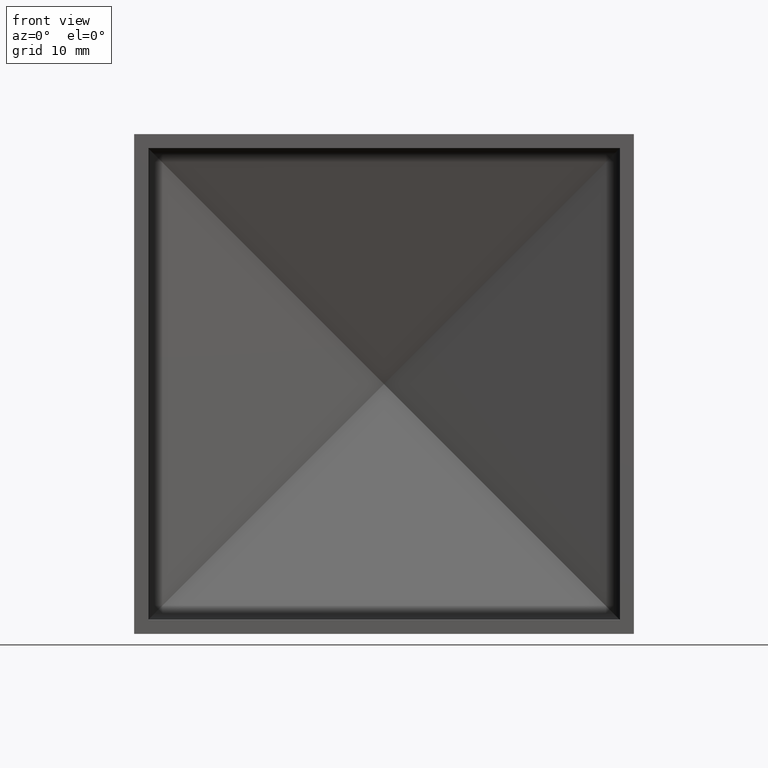
[diagram: clean part render]
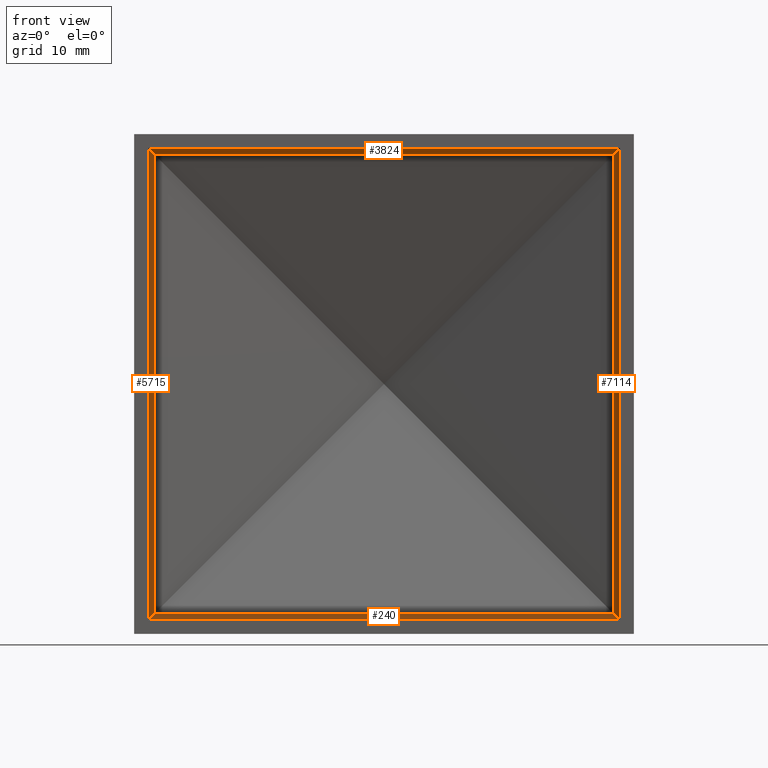
[diagram: same view with one multi-face feature highlighted, each face labeled with its STEP entity id]
A machine part, front view. The highlighted faces form ONE feature: a constant-radius fillet chain: 4 tangent blend faces with common blend radius 1 mm. The faces share edges in the B-rep.
Their STEP definitions:
[1] entity #240 (Cylinder):
#32 = EDGE_CURVE ( 'NONE', #11591, #4224, #11030, .T. ) ;
#240 = ADVANCED_FACE ( 'NONE', ( #425 ), #7842, .F. ) ;
#425 = FACE_OUTER_BOUND ( 'NONE', #6686, .T. ) ;
#426 = EDGE_CURVE ( 'NONE', #10903, #11591, #1463, .T. ) ;
#585 = DIRECTION ( 'NONE',  ( 1.000000000000000000, 0.000000000000000000, -0.000000000000000000 ) ) ;
#686 = CARTESIAN_POINT ( 'NONE',  ( 24.75550417178340723, 9.055369945534444298, -24.75550417178340723 ) ) ;
#1028 = AXIS2_PLACEMENT_3D ( 'NONE', #10097, #3553, #4428 ) ;
#1203 = VECTOR ( 'NONE', #5384, 1000.000000000000000 ) ;
#1463 =( BOUNDED_CURVE ( )  B_SPLINE_CURVE ( 3, ( #6646, #10402, #8469, #2819 ),
 .UNSPECIFIED., .F., .T. ) 
 B_SPLINE_CURVE_WITH_KNOTS ( ( 4, 4 ),
 ( 3.141592653589791340, 4.351324550702121208 ),
 .UNSPECIFIED. ) 
 CURVE ( )  GEOMETRIC_REPRESENTATION_ITEM ( )  RATIONAL_B_SPLINE_CURVE ( ( 1.000000000000000000, 0.8817188890797186263, 0.8817188890797186263, 1.000000000000000000 ) ) 
 REPRESENTATION_ITEM ( '' )  );
#1532 = CARTESIAN_POINT ( 'NONE',  ( 24.99999999999999289, 8.271739631613602484, -25.00000000000000000 ) ) ;
#2070 = CARTESIAN_POINT ( 'NONE',  ( -24.99999999999999289, 8.271739631613600707, -24.99999999999998579 ) ) ;
#2383 = LINE ( 'NONE', #11677, #11069 ) ;
#2404 = EDGE_CURVE ( 'NONE', #4224, #7138, #11124, .T. ) ;
#2819 = CARTESIAN_POINT ( 'NONE',  ( -24.35327022988071732, 9.207260954021604604, -24.35327022988070667 ) ) ;
#3150 = CARTESIAN_POINT ( 'NONE',  ( -24.35327022988071732, 9.207260954021604604, -24.35327022988070667 ) ) ;
#3488 = CARTESIAN_POINT ( 'NONE',  ( 24.35327022988072798, 9.207260954021602828, -24.35327022988073153 ) ) ;
#3544 = CARTESIAN_POINT ( 'NONE',  ( -26.50000000000002487, 9.207260954021604604, -24.35327022988070667 ) ) ;
#3553 = DIRECTION ( 'NONE',  ( 1.000000000000000000, -0.000000000000000000, -4.440892098500625669E-16 ) ) ;
#3832 = ORIENTED_EDGE ( 'NONE', *, *, #6747, .T. ) ;
#4224 = VERTEX_POINT ( 'NONE', #5218 ) ;
#4428 = DIRECTION ( 'NONE',  ( 0.000000000000000000, 0.000000000000000000, -1.000000000000000000 ) ) ;
#5055 = ORIENTED_EDGE ( 'NONE', *, *, #32, .F. ) ;
#5218 = CARTESIAN_POINT ( 'NONE',  ( 24.35327022988072798, 9.207260954021602828, -24.35327022988073153 ) ) ;
#5384 = DIRECTION ( 'NONE',  ( 1.000000000000000000, -0.000000000000000000, -4.440892098500625669E-16 ) ) ;
#6646 = CARTESIAN_POINT ( 'NONE',  ( -24.99999999999999289, 8.271739631613600707, -24.99999999999998579 ) ) ;
#6686 = EDGE_LOOP ( 'NONE', ( #7185, #3832, #10701, #5055 ) ) ;
#6747 = EDGE_CURVE ( 'NONE', #10903, #7138, #2383, .T. ) ;
#7138 = VERTEX_POINT ( 'NONE', #7287 ) ;
#7185 = ORIENTED_EDGE ( 'NONE', *, *, #426, .F. ) ;
#7287 = CARTESIAN_POINT ( 'NONE',  ( 24.99999999999999289, 8.271739631613602484, -25.00000000000000000 ) ) ;
#7842 = CYLINDRICAL_SURFACE ( 'NONE', #1028, 1.000000000000000888 ) ;
#8469 = CARTESIAN_POINT ( 'NONE',  ( -24.75550417178340368, 9.055369945534446074, -24.75550417178338947 ) ) ;
#10097 = CARTESIAN_POINT ( 'NONE',  ( -26.50000000000002487, 8.271739631613602484, -23.99999999999998224 ) ) ;
#10402 = CARTESIAN_POINT ( 'NONE',  ( -24.99999999999999289, 8.701696632344857463, -24.99999999999998224 ) ) ;
#10701 = ORIENTED_EDGE ( 'NONE', *, *, #2404, .F. ) ;
#10903 = VERTEX_POINT ( 'NONE', #2070 ) ;
#11030 = LINE ( 'NONE', #3544, #1203 ) ;
#11033 = CARTESIAN_POINT ( 'NONE',  ( 24.99999999999999289, 8.701696632344857463, -25.00000000000000000 ) ) ;
#11069 = VECTOR ( 'NONE', #585, 1000.000000000000000 ) ;
#11124 =( BOUNDED_CURVE ( )  B_SPLINE_CURVE ( 3, ( #3488, #686, #11033, #1532 ),
 .UNSPECIFIED., .F., .F. ) 
 B_SPLINE_CURVE_WITH_KNOTS ( ( 4, 4 ),
 ( 1.931860756477469021, 3.141592653589793116 ),
 .UNSPECIFIED. ) 
 CURVE ( )  GEOMETRIC_REPRESENTATION_ITEM ( )  RATIONAL_B_SPLINE_CURVE ( ( 1.000000000000000000, 0.8817188890797196255, 0.8817188890797196255, 1.000000000000000000 ) ) 
 REPRESENTATION_ITEM ( '' )  );
#11591 = VERTEX_POINT ( 'NONE', #3150 ) ;
#11677 = CARTESIAN_POINT ( 'NONE',  ( -26.50000000000000000, 8.271739631613602484, -24.99999999999999289 ) ) ;
[2] entity #7114 (Cylinder):
#222 = VECTOR ( 'NONE', #6577, 1000.000000000000000 ) ;
#686 = CARTESIAN_POINT ( 'NONE',  ( 24.75550417178340723, 9.055369945534444298, -24.75550417178340723 ) ) ;
#998 = CARTESIAN_POINT ( 'NONE',  ( 24.35327022988074219, 9.207260954021601052, 24.35327022988073509 ) ) ;
#1532 = CARTESIAN_POINT ( 'NONE',  ( 24.99999999999999289, 8.271739631613602484, -25.00000000000000000 ) ) ;
#1787 = CYLINDRICAL_SURFACE ( 'NONE', #2998, 0.9999999999999974465 ) ;
#1999 = VECTOR ( 'NONE', #4627, 1000.000000000000000 ) ;
#2075 = CARTESIAN_POINT ( 'NONE',  ( 24.75550417178341434, 9.055369945534437193, 24.75550417178342144 ) ) ;
#2404 = EDGE_CURVE ( 'NONE', #4224, #7138, #11124, .T. ) ;
#2514 = CARTESIAN_POINT ( 'NONE',  ( 25.00000000000000000, 8.271739631613600707, 25.00000000000000000 ) ) ;
#2977 =( BOUNDED_CURVE ( )  B_SPLINE_CURVE ( 3, ( #10596, #6670, #2075, #998 ),
 .UNSPECIFIED., .F., .T. ) 
 B_SPLINE_CURVE_WITH_KNOTS ( ( 4, 4 ),
 ( -1.776356839400250465E-15, 1.209731897112316990 ),
 .UNSPECIFIED. ) 
 CURVE ( )  GEOMETRIC_REPRESENTATION_ITEM ( )  RATIONAL_B_SPLINE_CURVE ( ( 1.000000000000000000, 0.8817188890797207357, 0.8817188890797207357, 1.000000000000000000 ) ) 
 REPRESENTATION_ITEM ( '' )  );
#2998 = AXIS2_PLACEMENT_3D ( 'NONE', #6508, #9319, #6460 ) ;
#3265 = EDGE_CURVE ( 'NONE', #7138, #9124, #8631, .T. ) ;
#3432 = EDGE_CURVE ( 'NONE', #4224, #6844, #8035, .T. ) ;
#3488 = CARTESIAN_POINT ( 'NONE',  ( 24.35327022988072798, 9.207260954021602828, -24.35327022988073153 ) ) ;
#3666 = CARTESIAN_POINT ( 'NONE',  ( 24.35327022988073153, 9.207260954021602828, -26.49999999999999645 ) ) ;
#3719 = CARTESIAN_POINT ( 'NONE',  ( 24.35327022988074219, 9.207260954021601052, 24.35327022988073509 ) ) ;
#4082 = ORIENTED_EDGE ( 'NONE', *, *, #6300, .T. ) ;
#4224 = VERTEX_POINT ( 'NONE', #5218 ) ;
#4435 = FACE_OUTER_BOUND ( 'NONE', #6035, .T. ) ;
#4627 = DIRECTION ( 'NONE',  ( -0.000000000000000000, -0.000000000000000000, 1.000000000000000000 ) ) ;
#5218 = CARTESIAN_POINT ( 'NONE',  ( 24.35327022988072798, 9.207260954021602828, -24.35327022988073153 ) ) ;
#6035 = EDGE_LOOP ( 'NONE', ( #7678, #12071, #4082, #9532 ) ) ;
#6300 = EDGE_CURVE ( 'NONE', #9124, #6844, #2977, .T. ) ;
#6460 = DIRECTION ( 'NONE',  ( 1.000000000000000000, 0.000000000000000000, 0.000000000000000000 ) ) ;
#6508 = CARTESIAN_POINT ( 'NONE',  ( 24.00000000000000711, 8.271739631613602484, -26.49999999999999645 ) ) ;
#6577 = DIRECTION ( 'NONE',  ( 1.963837897332234935E-16, 0.000000000000000000, 1.000000000000000000 ) ) ;
#6670 = CARTESIAN_POINT ( 'NONE',  ( 24.99999999999999645, 8.701696632344852134, 25.00000000000000355 ) ) ;
#6844 = VERTEX_POINT ( 'NONE', #3719 ) ;
#7114 = ADVANCED_FACE ( 'NONE', ( #4435 ), #1787, .F. ) ;
#7138 = VERTEX_POINT ( 'NONE', #7287 ) ;
#7287 = CARTESIAN_POINT ( 'NONE',  ( 24.99999999999999289, 8.271739631613602484, -25.00000000000000000 ) ) ;
#7678 = ORIENTED_EDGE ( 'NONE', *, *, #2404, .T. ) ;
#8035 = LINE ( 'NONE', #3666, #1999 ) ;
#8631 = LINE ( 'NONE', #9950, #222 ) ;
#9124 = VERTEX_POINT ( 'NONE', #2514 ) ;
#9319 = DIRECTION ( 'NONE',  ( -0.000000000000000000, -0.000000000000000000, 1.000000000000000000 ) ) ;
#9532 = ORIENTED_EDGE ( 'NONE', *, *, #3432, .F. ) ;
#9950 = CARTESIAN_POINT ( 'NONE',  ( 24.99999999999999289, 8.271739631613602484, -26.49999999999999645 ) ) ;
#10596 = CARTESIAN_POINT ( 'NONE',  ( 25.00000000000000000, 8.271739631613600707, 25.00000000000000000 ) ) ;
#11033 = CARTESIAN_POINT ( 'NONE',  ( 24.99999999999999289, 8.701696632344857463, -25.00000000000000000 ) ) ;
#11124 =( BOUNDED_CURVE ( )  B_SPLINE_CURVE ( 3, ( #3488, #686, #11033, #1532 ),
 .UNSPECIFIED., .F., .F. ) 
 B_SPLINE_CURVE_WITH_KNOTS ( ( 4, 4 ),
 ( 1.931860756477469021, 3.141592653589793116 ),
 .UNSPECIFIED. ) 
 CURVE ( )  GEOMETRIC_REPRESENTATION_ITEM ( )  RATIONAL_B_SPLINE_CURVE ( ( 1.000000000000000000, 0.8817188890797196255, 0.8817188890797196255, 1.000000000000000000 ) ) 
 REPRESENTATION_ITEM ( '' )  );
#12071 = ORIENTED_EDGE ( 'NONE', *, *, #3265, .T. ) ;
[3] entity #3824 (Cylinder):
#818 = EDGE_LOOP ( 'NONE', ( #2821, #3611, #2333, #4473 ) ) ;
#873 = CARTESIAN_POINT ( 'NONE',  ( -24.99999999999999289, 8.271739631613602484, 25.00000000000001421 ) ) ;
#998 = CARTESIAN_POINT ( 'NONE',  ( 24.35327022988074219, 9.207260954021601052, 24.35327022988073509 ) ) ;
#1124 = FACE_OUTER_BOUND ( 'NONE', #818, .T. ) ;
#1168 = CARTESIAN_POINT ( 'NONE',  ( -24.35327022988072798, 9.207260954021599275, 24.35327022988075640 ) ) ;
#1254 = DIRECTION ( 'NONE',  ( 1.000000000000000000, -0.000000000000000000, -4.440892098500625669E-16 ) ) ;
#1895 = DIRECTION ( 'NONE',  ( 1.000000000000000000, -0.000000000000000000, -4.440892098500625669E-16 ) ) ;
#2004 = VERTEX_POINT ( 'NONE', #873 ) ;
#2075 = CARTESIAN_POINT ( 'NONE',  ( 24.75550417178341434, 9.055369945534437193, 24.75550417178342144 ) ) ;
#2333 = ORIENTED_EDGE ( 'NONE', *, *, #6300, .F. ) ;
#2514 = CARTESIAN_POINT ( 'NONE',  ( 25.00000000000000000, 8.271739631613600707, 25.00000000000000000 ) ) ;
#2821 = ORIENTED_EDGE ( 'NONE', *, *, #10797, .F. ) ;
#2977 =( BOUNDED_CURVE ( )  B_SPLINE_CURVE ( 3, ( #10596, #6670, #2075, #998 ),
 .UNSPECIFIED., .F., .T. ) 
 B_SPLINE_CURVE_WITH_KNOTS ( ( 4, 4 ),
 ( -1.776356839400250465E-15, 1.209731897112316990 ),
 .UNSPECIFIED. ) 
 CURVE ( )  GEOMETRIC_REPRESENTATION_ITEM ( )  RATIONAL_B_SPLINE_CURVE ( ( 1.000000000000000000, 0.8817188890797207357, 0.8817188890797207357, 1.000000000000000000 ) ) 
 REPRESENTATION_ITEM ( '' )  );
#3302 = CYLINDRICAL_SURFACE ( 'NONE', #10091, 0.9999999999999974465 ) ;
#3611 = ORIENTED_EDGE ( 'NONE', *, *, #4484, .T. ) ;
#3719 = CARTESIAN_POINT ( 'NONE',  ( 24.35327022988074219, 9.207260954021601052, 24.35327022988073509 ) ) ;
#3824 = ADVANCED_FACE ( 'NONE', ( #1124 ), #3302, .F. ) ;
#3889 = CARTESIAN_POINT ( 'NONE',  ( -26.50000000000001776, 9.207260954021606381, 24.35327022988074575 ) ) ;
#3959 = CARTESIAN_POINT ( 'NONE',  ( -26.50000000000001066, 8.271739631613602484, 25.00000000000001421 ) ) ;
#4128 = VECTOR ( 'NONE', #1254, 1000.000000000000000 ) ;
#4338 = VERTEX_POINT ( 'NONE', #5667 ) ;
#4473 = ORIENTED_EDGE ( 'NONE', *, *, #10867, .F. ) ;
#4484 = EDGE_CURVE ( 'NONE', #4338, #6844, #10689, .T. ) ;
#4810 =( BOUNDED_CURVE ( )  B_SPLINE_CURVE ( 3, ( #1168, #10634, #5006, #9594 ),
 .UNSPECIFIED., .F., .F. ) 
 B_SPLINE_CURVE_WITH_KNOTS ( ( 4, 4 ),
 ( 5.073453410067266134, 6.283185307179586232 ),
 .UNSPECIFIED. ) 
 CURVE ( )  GEOMETRIC_REPRESENTATION_ITEM ( )  RATIONAL_B_SPLINE_CURVE ( ( 1.000000000000000000, 0.8817188890797205136, 0.8817188890797205136, 1.000000000000000000 ) ) 
 REPRESENTATION_ITEM ( '' )  );
#5006 = CARTESIAN_POINT ( 'NONE',  ( -24.99999999999998934, 8.701696632344855686, 25.00000000000002842 ) ) ;
#5667 = CARTESIAN_POINT ( 'NONE',  ( -24.35327022988072798, 9.207260954021599275, 24.35327022988075640 ) ) ;
#6300 = EDGE_CURVE ( 'NONE', #9124, #6844, #2977, .T. ) ;
#6670 = CARTESIAN_POINT ( 'NONE',  ( 24.99999999999999645, 8.701696632344852134, 25.00000000000000355 ) ) ;
#6844 = VERTEX_POINT ( 'NONE', #3719 ) ;
#7254 = LINE ( 'NONE', #3959, #4128 ) ;
#7704 = DIRECTION ( 'NONE',  ( 0.000000000000000000, 0.000000000000000000, -1.000000000000000000 ) ) ;
#7764 = VECTOR ( 'NONE', #9557, 1000.000000000000000 ) ;
#9124 = VERTEX_POINT ( 'NONE', #2514 ) ;
#9557 = DIRECTION ( 'NONE',  ( 1.000000000000000000, -1.467678568125111554E-16, -5.542226913845239764E-17 ) ) ;
#9594 = CARTESIAN_POINT ( 'NONE',  ( -24.99999999999999289, 8.271739631613602484, 25.00000000000001421 ) ) ;
#10091 = AXIS2_PLACEMENT_3D ( 'NONE', #10297, #1895, #7704 ) ;
#10297 = CARTESIAN_POINT ( 'NONE',  ( -26.50000000000001066, 8.271739631613602484, 24.00000000000001776 ) ) ;
#10596 = CARTESIAN_POINT ( 'NONE',  ( 25.00000000000000000, 8.271739631613600707, 25.00000000000000000 ) ) ;
#10634 = CARTESIAN_POINT ( 'NONE',  ( -24.75550417178340368, 9.055369945534440745, 24.75550417178343920 ) ) ;
#10689 = LINE ( 'NONE', #3889, #7764 ) ;
#10797 = EDGE_CURVE ( 'NONE', #4338, #2004, #4810, .T. ) ;
#10867 = EDGE_CURVE ( 'NONE', #2004, #9124, #7254, .T. ) ;
[4] entity #5715 (Cylinder):
#280 = VECTOR ( 'NONE', #4872, 1000.000000000000000 ) ;
#426 = EDGE_CURVE ( 'NONE', #10903, #11591, #1463, .T. ) ;
#617 = FACE_OUTER_BOUND ( 'NONE', #4699, .T. ) ;
#873 = CARTESIAN_POINT ( 'NONE',  ( -24.99999999999999289, 8.271739631613602484, 25.00000000000001421 ) ) ;
#1168 = CARTESIAN_POINT ( 'NONE',  ( -24.35327022988072798, 9.207260954021599275, 24.35327022988075640 ) ) ;
#1463 =( BOUNDED_CURVE ( )  B_SPLINE_CURVE ( 3, ( #6646, #10402, #8469, #2819 ),
 .UNSPECIFIED., .F., .T. ) 
 B_SPLINE_CURVE_WITH_KNOTS ( ( 4, 4 ),
 ( 3.141592653589791340, 4.351324550702121208 ),
 .UNSPECIFIED. ) 
 CURVE ( )  GEOMETRIC_REPRESENTATION_ITEM ( )  RATIONAL_B_SPLINE_CURVE ( ( 1.000000000000000000, 0.8817188890797186263, 0.8817188890797186263, 1.000000000000000000 ) ) 
 REPRESENTATION_ITEM ( '' )  );
#2004 = VERTEX_POINT ( 'NONE', #873 ) ;
#2070 = CARTESIAN_POINT ( 'NONE',  ( -24.99999999999999289, 8.271739631613600707, -24.99999999999998579 ) ) ;
#2211 = LINE ( 'NONE', #8609, #280 ) ;
#2819 = CARTESIAN_POINT ( 'NONE',  ( -24.35327022988071732, 9.207260954021604604, -24.35327022988070667 ) ) ;
#3150 = CARTESIAN_POINT ( 'NONE',  ( -24.35327022988071732, 9.207260954021604604, -24.35327022988070667 ) ) ;
#3321 = ORIENTED_EDGE ( 'NONE', *, *, #11404, .T. ) ;
#3685 = DIRECTION ( 'NONE',  ( -0.000000000000000000, -0.000000000000000000, 1.000000000000000000 ) ) ;
#3991 = AXIS2_PLACEMENT_3D ( 'NONE', #7722, #4031, #11588 ) ;
#4031 = DIRECTION ( 'NONE',  ( -0.000000000000000000, -0.000000000000000000, 1.000000000000000000 ) ) ;
#4338 = VERTEX_POINT ( 'NONE', #5667 ) ;
#4699 = EDGE_LOOP ( 'NONE', ( #7578, #3321, #9713, #6970 ) ) ;
#4810 =( BOUNDED_CURVE ( )  B_SPLINE_CURVE ( 3, ( #1168, #10634, #5006, #9594 ),
 .UNSPECIFIED., .F., .F. ) 
 B_SPLINE_CURVE_WITH_KNOTS ( ( 4, 4 ),
 ( 5.073453410067266134, 6.283185307179586232 ),
 .UNSPECIFIED. ) 
 CURVE ( )  GEOMETRIC_REPRESENTATION_ITEM ( )  RATIONAL_B_SPLINE_CURVE ( ( 1.000000000000000000, 0.8817188890797205136, 0.8817188890797205136, 1.000000000000000000 ) ) 
 REPRESENTATION_ITEM ( '' )  );
#4872 = DIRECTION ( 'NONE',  ( -0.000000000000000000, 0.000000000000000000, 1.000000000000000000 ) ) ;
#5006 = CARTESIAN_POINT ( 'NONE',  ( -24.99999999999998934, 8.701696632344855686, 25.00000000000002842 ) ) ;
#5667 = CARTESIAN_POINT ( 'NONE',  ( -24.35327022988072798, 9.207260954021599275, 24.35327022988075640 ) ) ;
#5715 = ADVANCED_FACE ( 'NONE', ( #617 ), #11244, .F. ) ;
#5772 = VECTOR ( 'NONE', #3685, 1000.000000000000000 ) ;
#6525 = CARTESIAN_POINT ( 'NONE',  ( -24.99999999999999289, 8.271739631613602484, -26.49999999999999645 ) ) ;
#6646 = CARTESIAN_POINT ( 'NONE',  ( -24.99999999999999289, 8.271739631613600707, -24.99999999999998579 ) ) ;
#6970 = ORIENTED_EDGE ( 'NONE', *, *, #11353, .F. ) ;
#7578 = ORIENTED_EDGE ( 'NONE', *, *, #426, .T. ) ;
#7722 = CARTESIAN_POINT ( 'NONE',  ( -23.99999999999999289, 8.271739631613602484, -26.49999999999999645 ) ) ;
#8469 = CARTESIAN_POINT ( 'NONE',  ( -24.75550417178340368, 9.055369945534446074, -24.75550417178338947 ) ) ;
#8609 = CARTESIAN_POINT ( 'NONE',  ( -24.35327022988071732, 9.207260954021604604, -26.49999999999999645 ) ) ;
#9594 = CARTESIAN_POINT ( 'NONE',  ( -24.99999999999999289, 8.271739631613602484, 25.00000000000001421 ) ) ;
#9713 = ORIENTED_EDGE ( 'NONE', *, *, #10797, .T. ) ;
#10136 = LINE ( 'NONE', #6525, #5772 ) ;
#10402 = CARTESIAN_POINT ( 'NONE',  ( -24.99999999999999289, 8.701696632344857463, -24.99999999999998224 ) ) ;
#10634 = CARTESIAN_POINT ( 'NONE',  ( -24.75550417178340368, 9.055369945534440745, 24.75550417178343920 ) ) ;
#10797 = EDGE_CURVE ( 'NONE', #4338, #2004, #4810, .T. ) ;
#10903 = VERTEX_POINT ( 'NONE', #2070 ) ;
#11244 = CYLINDRICAL_SURFACE ( 'NONE', #3991, 1.000000000000000888 ) ;
#11353 = EDGE_CURVE ( 'NONE', #10903, #2004, #10136, .T. ) ;
#11404 = EDGE_CURVE ( 'NONE', #11591, #4338, #2211, .T. ) ;
#11588 = DIRECTION ( 'NONE',  ( 1.000000000000000000, 0.000000000000000000, 0.000000000000000000 ) ) ;
#11591 = VERTEX_POINT ( 'NONE', #3150 ) ;